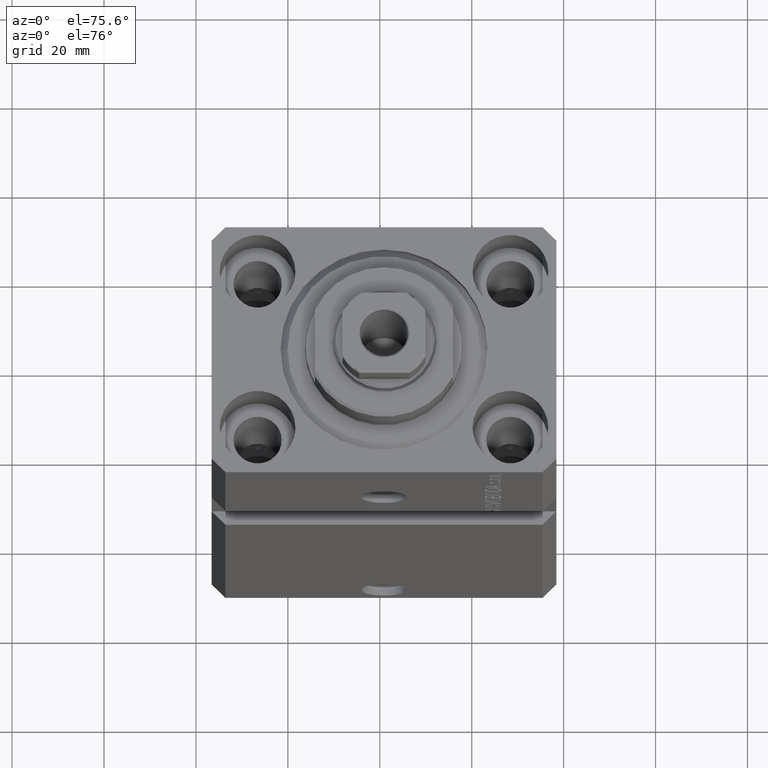
[diagram: clean part render]
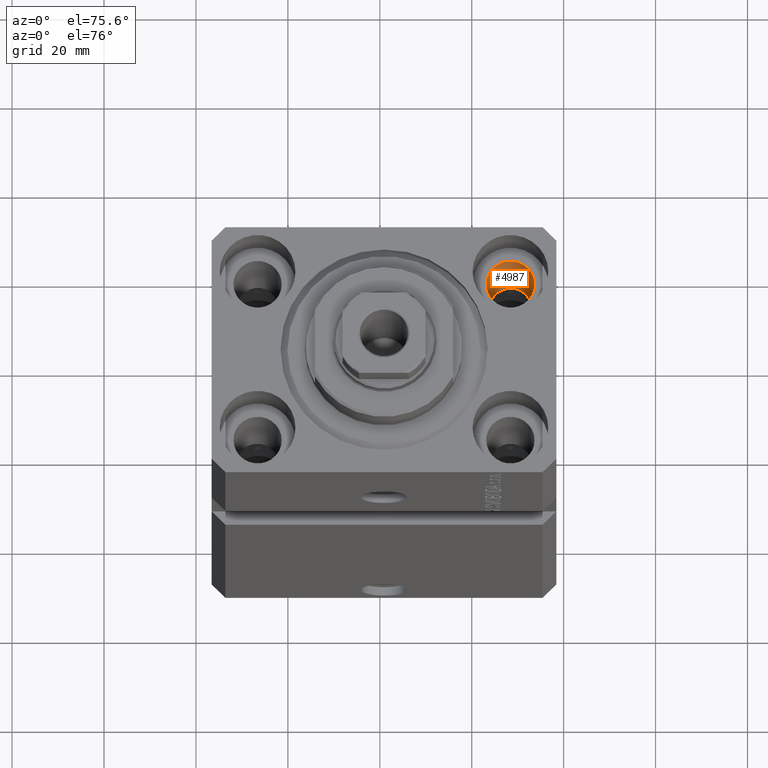
[diagram: same view with one face highlighted and labeled with its STEP entity id]
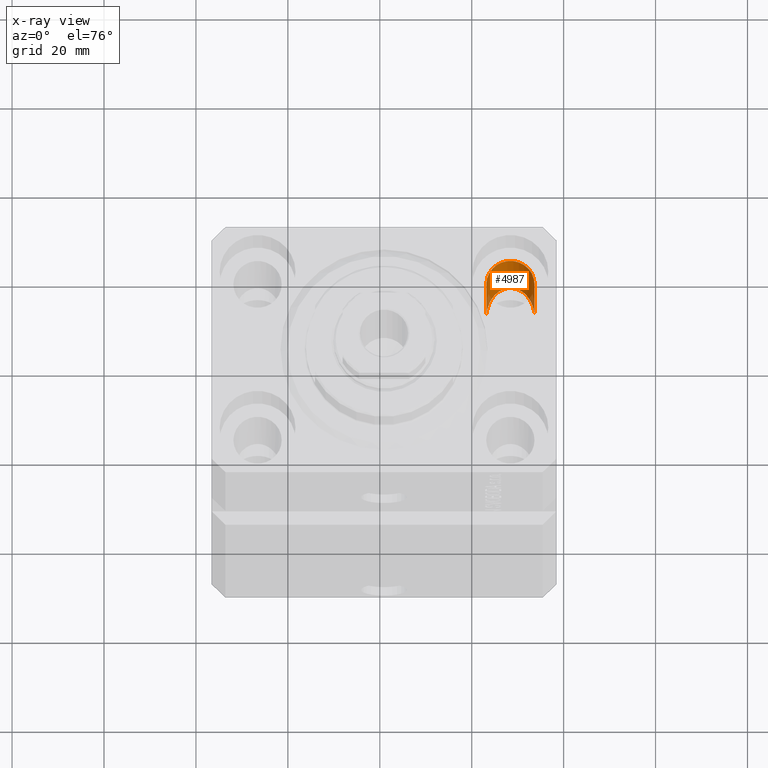
[diagram: x-ray of the same camera — body ghosted, the highlighted face saturated]
A machine part, auxiliary view. The second image highlights one B-rep face of the part: STEP entity #4987.
The next image is the same camera in x-ray: the body ghosted, the highlighted face saturated — about 6% of this face is hidden behind the body in this view.
In plain terms, the highlighted cylindrical surface (edge-blend (fillet) strip) has radius 5.25 mm, axis along (0, 0, 1).
Its self-contained STEP definition (entity closure, byte-faithful):
#2461 = VECTOR ( 'NONE', #19393, 1000.000000000000000 ) ;
#4014 = LINE ( 'NONE', #36671, #2461 ) ;
#4615 = AXIS2_PLACEMENT_3D ( 'NONE', #19795, #34236, #9133 ) ;
#4987 = ADVANCED_FACE ( 'NONE', ( #12459 ), #26895, .F. ) ;
#6155 = CARTESIAN_POINT ( 'NONE',  ( 22.25000000000000711, 17.50000000000001421, -39.99999999999999289 ) ) ;
#7496 = EDGE_CURVE ( 'NONE', #26569, #41047, #4014, .T. ) ;
#9133 = DIRECTION ( 'NONE',  ( 1.000000000000000000, 0.000000000000000000, 0.000000000000000000 ) ) ;
#10079 = ORIENTED_EDGE ( 'NONE', *, *, #39287, .T. ) ;
#12459 = FACE_OUTER_BOUND ( 'NONE', #19782, .T. ) ;
#12651 =( BOUNDED_CURVE ( )  B_SPLINE_CURVE ( 3, ( #38971, #39201, #17424, #42059 ),
 .UNSPECIFIED., .F., .F. ) 
 B_SPLINE_CURVE_WITH_KNOTS ( ( 4, 4 ),
 ( 4.712388980384689674, 7.853981633974482790 ),
 .UNSPECIFIED. ) 
 CURVE ( )  GEOMETRIC_REPRESENTATION_ITEM ( )  RATIONAL_B_SPLINE_CURVE ( ( 1.000000000000000000, 0.3333333333333333703, 0.3333333333333333703, 1.000000000000000000 ) ) 
 REPRESENTATION_ITEM ( '' )  );
#13685 = VERTEX_POINT ( 'NONE', #46233 ) ;
#16598 = EDGE_CURVE ( 'NONE', #13685, #44479, #18862, .T. ) ;
#17424 = CARTESIAN_POINT ( 'NONE',  ( 32.74999999999999289, 28.00000000000000000, -29.50000000000001066 ) ) ;
#18635 = CARTESIAN_POINT ( 'NONE',  ( 32.74999999999999289, 17.50000000000001066, -110.0000000000000000 ) ) ;
#18862 = LINE ( 'NONE', #18635, #42050 ) ;
#19393 = DIRECTION ( 'NONE',  ( -0.000000000000000000, -0.000000000000000000, 1.000000000000000000 ) ) ;
#19782 = EDGE_LOOP ( 'NONE', ( #25697, #10079, #42288, #25253 ) ) ;
#19795 = CARTESIAN_POINT ( 'NONE',  ( 27.49999999999999645, 17.50000000000001066, -110.0000000000000000 ) ) ;
#25253 = ORIENTED_EDGE ( 'NONE', *, *, #41522, .T. ) ;
#25697 = ORIENTED_EDGE ( 'NONE', *, *, #7496, .F. ) ;
#26569 = VERTEX_POINT ( 'NONE', #6155 ) ;
#26895 = CYLINDRICAL_SURFACE ( 'NONE', #4615, 5.249999999999997335 ) ;
#27173 = DIRECTION ( 'NONE',  ( 1.000000000000000000, 0.000000000000000000, 0.000000000000000000 ) ) ;
#28819 = DIRECTION ( 'NONE',  ( -0.000000000000000000, -0.000000000000000000, 1.000000000000000000 ) ) ;
#31416 = DIRECTION ( 'NONE',  ( 0.000000000000000000, 0.000000000000000000, 1.000000000000000000 ) ) ;
#34236 = DIRECTION ( 'NONE',  ( -0.000000000000000000, -0.000000000000000000, 1.000000000000000000 ) ) ;
#36671 = CARTESIAN_POINT ( 'NONE',  ( 22.25000000000000000, 17.50000000000001066, -110.0000000000000000 ) ) ;
#38064 = CARTESIAN_POINT ( 'NONE',  ( 27.49999999999999645, 17.50000000000001066, -11.00000000000000000 ) ) ;
#38971 = CARTESIAN_POINT ( 'NONE',  ( 22.25000000000000711, 17.50000000000001421, -39.99999999999999289 ) ) ;
#39201 = CARTESIAN_POINT ( 'NONE',  ( 22.25000000000000355, 28.00000000000000000, -29.50000000000001066 ) ) ;
#39287 = EDGE_CURVE ( 'NONE', #26569, #13685, #12651, .T. ) ;
#41047 = VERTEX_POINT ( 'NONE', #45270 ) ;
#41522 = EDGE_CURVE ( 'NONE', #44479, #41047, #43861, .T. ) ;
#42050 = VECTOR ( 'NONE', #28819, 1000.000000000000000 ) ;
#42059 = CARTESIAN_POINT ( 'NONE',  ( 32.74999999999999289, 17.50000000000001421, -39.99999999999999289 ) ) ;
#42288 = ORIENTED_EDGE ( 'NONE', *, *, #16598, .T. ) ;
#43861 = CIRCLE ( 'NONE', #45362, 5.249999999999997335 ) ;
#44298 = CARTESIAN_POINT ( 'NONE',  ( 32.74999999999999289, 17.50000000000001066, -11.00000000000000000 ) ) ;
#44479 = VERTEX_POINT ( 'NONE', #44298 ) ;
#45270 = CARTESIAN_POINT ( 'NONE',  ( 22.25000000000000000, 17.50000000000001066, -11.00000000000000000 ) ) ;
#45362 = AXIS2_PLACEMENT_3D ( 'NONE', #38064, #31416, #27173 ) ;
#46233 = CARTESIAN_POINT ( 'NONE',  ( 32.74999999999999289, 17.50000000000001421, -39.99999999999999289 ) ) ;